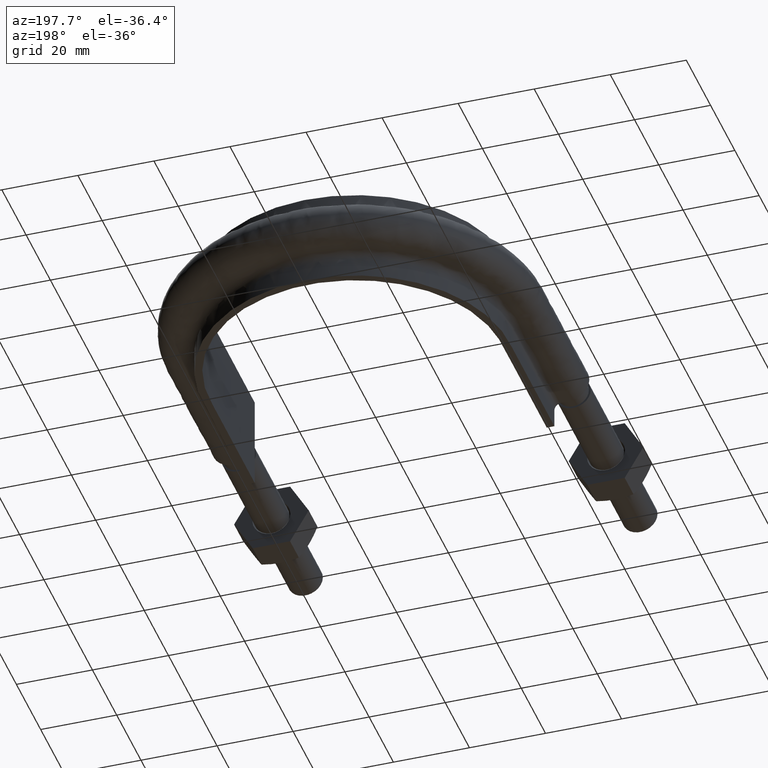
[diagram: clean part render]
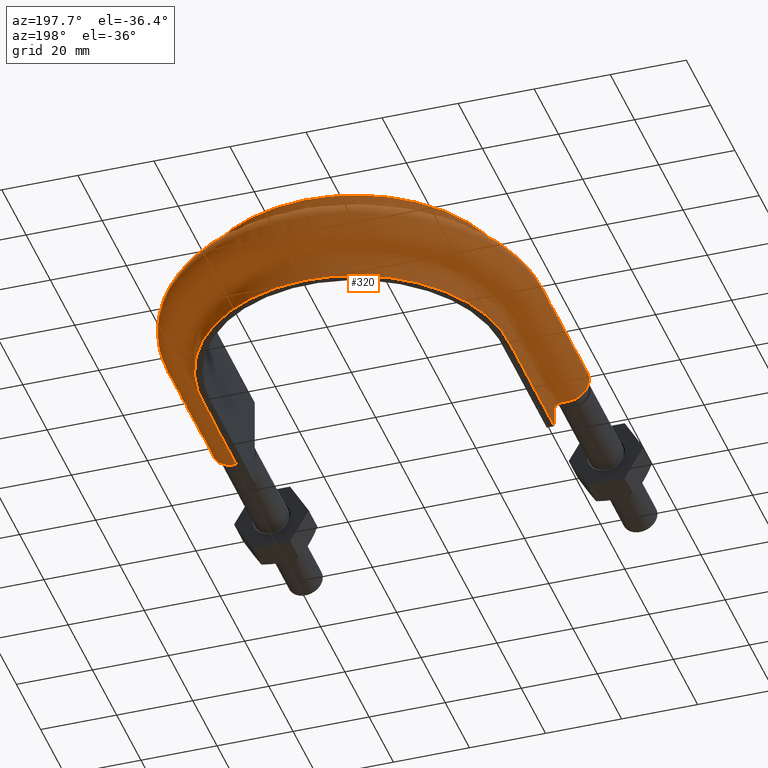
[diagram: same view with one face highlighted and labeled with its STEP entity id]
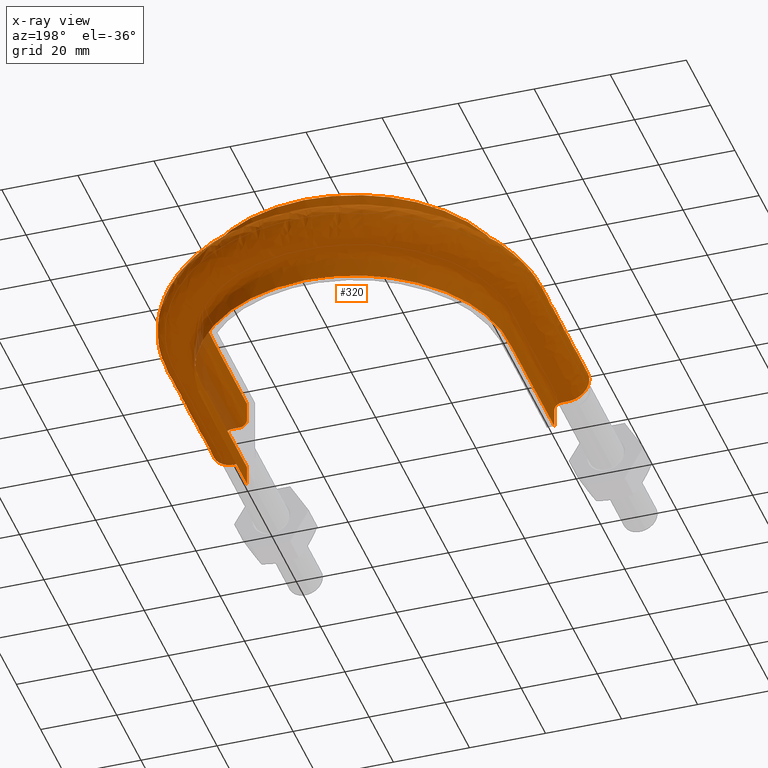
[diagram: x-ray of the same camera — body ghosted, the highlighted face saturated]
A machine part, auxiliary view. The second image highlights one B-rep face of the part: STEP entity #320.
The next image is the same camera in x-ray: the body ghosted, the highlighted face saturated — about 2% of this face is hidden behind the body in this view.
In plain terms, the highlighted face is a freeform B-spline surface patch.
Its self-contained STEP definition (entity closure, byte-faithful):
#320 = ADVANCED_FACE( '', ( #406 ), #407, .F. );
#406 = FACE_OUTER_BOUND( '', #581, .T. );
#407 = B_SPLINE_SURFACE_WITH_KNOTS( '', 3, 3, ( ( #582, #583, #584, #585, #586, #587, #588, #589, #590, #591, #592, #593, #594, #595, #596, #597, #598 ), ( #599, #600, #601, #602, #603, #604, #605, #606, #607, #608, #609, #610, #611, #612, #613, #614, #615 ), ( #616, #617, #618, #619, #620, #621, #622, #623, #624, #625, #626, #627, #628, #629, #630, #631, #632 ), ( #633, #634, #635, #636, #637, #638, #639, #640, #641, #642, #643, #644, #645, #646, #647, #648, #649 ), ( #650, #651, #652, #653, #654, #655, #656, #657, #658, #659, #660, #661, #662, #663, #664, #665, #666 ), ( #667, #668, #669, #670, #671, #672, #673, #674, #675, #676, #677, #678, #679, #680, #681, #682, #683 ), ( #684, #685, #686, #687, #688, #689, #690, #691, #692, #693, #694, #695, #696, #697, #698, #699, #700 ), ( #701, #702, #703, #704, #705, #706, #707, #708, #709, #710, #711, #712, #713, #714, #715, #716, #717 ), ( #718, #719, #720, #721, #722, #723, #724, #725, #726, #727, #728, #729, #730, #731, #732, #733, #734 ), ( #735, #736, #737, #738, #739, #740, #741, #742, #743, #744, #745, #746, #747, #748, #749, #750, #751 ), ( #752, #753, #754, #755, #756, #757, #758, #759, #760, #761, #762, #763, #764, #765, #766, #767, #768 ), ( #769, #770, #771, #772, #773, #774, #775, #776, #777, #778, #779, #780, #781, #782, #783, #784, #785 ), ( #786, #787, #788, #789, #790, #791, #792, #793, #794, #795, #796, #797, #798, #799, #800, #801, #802 ), ( #803, #804, #805, #806, #807, #808, #809, #810, #811, #812, #813, #814, #815, #816, #817, #818, #819 ), ( #820, #821, #822, #823, #824, #825, #826, #827, #828, #829, #830, #831, #832, #833, #834, #835, #836 ), ( #837, #838, #839, #840, #841, #842, #843, #844, #845, #846, #847, #848, #849, #850, #851, #852, #853 ), ( #854, #855, #856, #857, #858, #859, #860, #861, #862, #863, #864, #865, #866, #867, #868, #869, #870 ), ( #871, #872, #873, #874, #875, #876, #877, #878, #879, #880, #881, #882, #883, #884, #885, #886, #887 ), ( #888, #889, #890, #891, #892, #893, #894, #895, #896, #897, #898, #899, #900, #901, #902, #903, #904 ), ( #905, #906, #907, #908, #909, #910, #911, #912, #913, #914, #915, #916, #917, #918, #919, #920, #921 ), ( #922, #923, #924, #925, #926, #927, #928, #929, #930, #931, #932, #933, #934, #935, #936, #937, #938 ), ( #939, #940, #941, #942, #943, #944, #945, #946, #947, #948, #949, #950, #951, #952, #953, #954, #955 ), ( #956, #957, #958, #959, #960, #961, #962, #963, #964, #965, #966, #967, #968, #969, #970, #971, #972 ), ( #973, #974, #975, #976, #977, #978, #979, #980, #981, #982, #983, #984, #985, #986, #987, #988, #989 ), ( #990, #991, #992, #993, #994, #995, #996, #997, #998, #999, #1000, #1001, #1002, #1003, #1004, #1005, #1006 ), ( #1007, #1008, #1009, #1010, #1011, #1012, #1013, #1014, #1015, #1016, #1017, #1018, #1019, #1020, #1021, #1022, #1023 ), ( #1024, #1025, #1026, #1027, #1028, #1029, #1030, #1031, #1032, #1033, #1034, #1035, #1036, #1037, #1038, #1039, #1040 ), ( #1041, #1042, #1043, #1044, #1045, #1046, #1047, #1048, #1049, #1050, #1051, #1052, #1053, #1054, #1055, #1056, #1057 ), ( #1058, #1059, #1060, #1061, #1062, #1063, #1064, #1065, #1066, #1067, #1068, #1069, #1070, #1071, #1072, #1073, #1074 ), ( #1075, #1076, #1077, #1078, #1079, #1080, #1081, #1082, #1083, #1084, #1085, #1086, #1087, #1088, #1089, #1090, #1091 ), ( #1092, #1093, #1094, #1095, #1096, #1097, #1098, #1099, #1100, #1101, #1102, #1103, #1104, #1105, #1106, #1107, #1108 ) ), .UNSPECIFIED., .F., .F., .F., ( 4, 3, 1, 1, 1, 3, 3, 1, 1, 1, 3, 3, 1, 1, 1, 3, 4 ), ( 4, 3, 1, 1, 1, 1, 1, 1, 1, 3, 4 ), ( 0.105263157894737, 0.157894736842105, 0.210526315789474, 0.263157894736842, 0.315789473684211, 0.368421052631579, 0.421052631578947, 0.473684210526316, 0.526315789473684, 0.578947368421053, 0.631578947368421, 0.684210526315789, 0.736842105263158, 0.789473684210526, 0.842105263157895, 0.894736842105263, 0.947368421052632 ), ( 0.000000000000000, 1.00000000000000, 1.50000000000000, 2.00000000000000, 3.00000000000000, 4.00000000000000, 5.00000000000000, 6.00000000000000, 6.50000000000000, 7.00000000000000, 8.00000000000000 ), .UNSPECIFIED. );
#581 = EDGE_LOOP( '', ( #1619, #1620, #1621, #1622 ) );
#582 = CARTESIAN_POINT( '', ( -40.4000000000000, 56.5000000000000, 12.5000000000000 ) );
#583 = CARTESIAN_POINT( '', ( -40.4000000000000, 69.8666666666667, 12.5000000000000 ) );
#584 = CARTESIAN_POINT( '', ( -40.4000000000000, 83.2333333333333, 12.5000000000000 ) );
#585 = CARTESIAN_POINT( '', ( -40.4000000000000, 96.6000000000000, 12.5000000000000 ) );
#586 = CARTESIAN_POINT( '', ( -40.4000000000000, 100.116528833197, 12.5000000000000 ) );
#587 = CARTESIAN_POINT( '', ( -39.4544182095027, 107.175179019489, 12.5000000000000 ) );
#588 = CARTESIAN_POINT( '', ( -34.0439198137652, 120.322280291266, 12.5000000000000 ) );
#589 = CARTESIAN_POINT( '', ( -21.1440253219688, 133.223582281160, 12.5000000000000 ) );
#590 = CARTESIAN_POINT( '', ( 3.17534878498284E-014, 138.888208859420, 12.5000000000000 ) );
#591 = CARTESIAN_POINT( '', ( 21.1440253219689, 133.223582281160, 12.5000000000000 ) );
#592 = CARTESIAN_POINT( '', ( 34.0439198137653, 120.322280291266, 12.5000000000000 ) );
#593 = CARTESIAN_POINT( '', ( 39.4544182095027, 107.175179019489, 12.5000000000000 ) );
#594 = CARTESIAN_POINT( '', ( 40.4000000000000, 100.116528833197, 12.5000000000000 ) );
#595 = CARTESIAN_POINT( '', ( 40.4000000000000, 96.6000000000000, 12.5000000000000 ) );
#596 = CARTESIAN_POINT( '', ( 40.4000000000000, 83.2333333333333, 12.5000000000000 ) );
#597 = CARTESIAN_POINT( '', ( 40.4000000000000, 69.8666666666667, 12.5000000000000 ) );
#598 = CARTESIAN_POINT( '', ( 40.4000000000000, 56.5000000000000, 12.5000000000000 ) );
#599 = CARTESIAN_POINT( '', ( -40.4000000000000, 56.5000000000000, 10.8666666666667 ) );
#600 = CARTESIAN_POINT( '', ( -40.4000000000000, 69.8666666666667, 10.8666666666667 ) );
#601 = CARTESIAN_POINT( '', ( -40.4000000000000, 83.2333333333333, 10.8666666666667 ) );
#602 = CARTESIAN_POINT( '', ( -40.4000000000000, 96.6000000000000, 10.8666666666667 ) );
#603 = CARTESIAN_POINT( '', ( -40.4000000000000, 100.116528833197, 10.8666666666667 ) );
#604 = CARTESIAN_POINT( '', ( -39.4544182095027, 107.175179019489, 10.8666666666666 ) );
#605 = CARTESIAN_POINT( '', ( -34.0439198137652, 120.322280291266, 10.8666666666667 ) );
#606 = CARTESIAN_POINT( '', ( -21.1440253219688, 133.223582281160, 10.8666666666667 ) );
#607 = CARTESIAN_POINT( '', ( 3.17534878498284E-014, 138.888208859420, 10.8666666666667 ) );
#608 = CARTESIAN_POINT( '', ( 21.1440253219689, 133.223582281160, 10.8666666666667 ) );
#609 = CARTESIAN_POINT( '', ( 34.0439198137653, 120.322280291266, 10.8666666666667 ) );
#610 = CARTESIAN_POINT( '', ( 39.4544182095027, 107.175179019489, 10.8666666666666 ) );
#611 = CARTESIAN_POINT( '', ( 40.4000000000000, 100.116528833197, 10.8666666666667 ) );
#612 = CARTESIAN_POINT( '', ( 40.4000000000000, 96.6000000000000, 10.8666666666667 ) );
#613 = CARTESIAN_POINT( '', ( 40.4000000000000, 83.2333333333333, 10.8666666666667 ) );
#614 = CARTESIAN_POINT( '', ( 40.4000000000000, 69.8666666666667, 10.8666666666667 ) );
#615 = CARTESIAN_POINT( '', ( 40.4000000000000, 56.5000000000000, 10.8666666666667 ) );
#616 = CARTESIAN_POINT( '', ( -40.4000000000000, 56.5000000000000, 9.23333333333332 ) );
#617 = CARTESIAN_POINT( '', ( -40.4000000000000, 69.8666666666667, 9.23333333333332 ) );
#618 = CARTESIAN_POINT( '', ( -40.4000000000000, 83.2333333333333, 9.23333333333332 ) );
#619 = CARTESIAN_POINT( '', ( -40.4000000000000, 96.6000000000000, 9.23333333333332 ) );
#620 = CARTESIAN_POINT( '', ( -40.4000000000000, 100.116528833197, 9.23333333333332 ) );
#621 = CARTESIAN_POINT( '', ( -39.4544182095027, 107.175179019489, 9.23333333333331 ) );
#622 = CARTESIAN_POINT( '', ( -34.0439198137652, 120.322280291266, 9.23333333333333 ) );
#623 = CARTESIAN_POINT( '', ( -21.1440253219688, 133.223582281160, 9.23333333333332 ) );
#624 = CARTESIAN_POINT( '', ( 3.17534878498284E-014, 138.888208859420, 9.23333333333332 ) );
#625 = CARTESIAN_POINT( '', ( 21.1440253219689, 133.223582281160, 9.23333333333332 ) );
#626 = CARTESIAN_POINT( '', ( 34.0439198137653, 120.322280291266, 9.23333333333332 ) );
#627 = CARTESIAN_POINT( '', ( 39.4544182095027, 107.175179019489, 9.23333333333331 ) );
#628 = CARTESIAN_POINT( '', ( 40.4000000000000, 100.116528833197, 9.23333333333332 ) );
#629 = CARTESIAN_POINT( '', ( 40.4000000000000, 96.6000000000000, 9.23333333333332 ) );
#630 = CARTESIAN_POINT( '', ( 40.4000000000000, 83.2333333333333, 9.23333333333332 ) );
#631 = CARTESIAN_POINT( '', ( 40.4000000000000, 69.8666666666667, 9.23333333333332 ) );
#632 = CARTESIAN_POINT( '', ( 40.4000000000000, 56.5000000000000, 9.23333333333332 ) );
#633 = CARTESIAN_POINT( '', ( -40.4000000000000, 56.5000000000000, 7.59999999999998 ) );
#634 = CARTESIAN_POINT( '', ( -40.4000000000000, 69.8666666666667, 7.59999999999998 ) );
#635 = CARTESIAN_POINT( '', ( -40.4000000000000, 83.2333333333333, 7.59999999999998 ) );
#636 = CARTESIAN_POINT( '', ( -40.4000000000000, 96.6000000000000, 7.59999999999998 ) );
#637 = CARTESIAN_POINT( '', ( -40.4000000000000, 100.116528833197, 7.59999999999998 ) );
#638 = CARTESIAN_POINT( '', ( -39.4544182095027, 107.175179019489, 7.59999999999997 ) );
#639 = CARTESIAN_POINT( '', ( -34.0439198137652, 120.322280291266, 7.59999999999999 ) );
#640 = CARTESIAN_POINT( '', ( -21.1440253219688, 133.223582281160, 7.59999999999998 ) );
#641 = CARTESIAN_POINT( '', ( 3.34882113258052E-014, 138.888208859420, 7.59999999999998 ) );
#642 = CARTESIAN_POINT( '', ( 21.1440253219689, 133.223582281160, 7.59999999999998 ) );
#643 = CARTESIAN_POINT( '', ( 34.0439198137653, 120.322280291266, 7.59999999999999 ) );
#644 = CARTESIAN_POINT( '', ( 39.4544182095027, 107.175179019489, 7.59999999999997 ) );
#645 = CARTESIAN_POINT( '', ( 40.4000000000000, 100.116528833197, 7.59999999999998 ) );
#646 = CARTESIAN_POINT( '', ( 40.4000000000000, 96.6000000000000, 7.59999999999998 ) );
#647 = CARTESIAN_POINT( '', ( 40.4000000000000, 83.2333333333333, 7.59999999999998 ) );
#648 = CARTESIAN_POINT( '', ( 40.4000000000000, 69.8666666666667, 7.59999999999998 ) );
#649 = CARTESIAN_POINT( '', ( 40.4000000000000, 56.5000000000000, 7.59999999999998 ) );
#650 = CARTESIAN_POINT( '', ( -40.4000000000000, 56.5000000000000, 7.33823584172332 ) );
#651 = CARTESIAN_POINT( '', ( -40.4000000000000, 69.8666666666667, 7.33823584172332 ) );
#652 = CARTESIAN_POINT( '', ( -40.4000000000000, 83.2333333333333, 7.33823584172332 ) );
#653 = CARTESIAN_POINT( '', ( -40.4000000000000, 96.6000000000000, 7.33823584172332 ) );
#654 = CARTESIAN_POINT( '', ( -40.4000000000000, 100.116528833197, 7.33823584172332 ) );
#655 = CARTESIAN_POINT( '', ( -39.4544182095027, 107.175179019489, 7.33823584172331 ) );
#656 = CARTESIAN_POINT( '', ( -34.0439198137652, 120.322280291266, 7.33823584172332 ) );
#657 = CARTESIAN_POINT( '', ( -21.1440253219688, 133.223582281160, 7.33823584172331 ) );
#658 = CARTESIAN_POINT( '', ( 3.17534878498284E-014, 138.888208859420, 7.33823584172331 ) );
#659 = CARTESIAN_POINT( '', ( 21.1440253219689, 133.223582281160, 7.33823584172331 ) );
#660 = CARTESIAN_POINT( '', ( 34.0439198137653, 120.322280291266, 7.33823584172332 ) );
#661 = CARTESIAN_POINT( '', ( 39.4544182095027, 107.175179019489, 7.33823584172331 ) );
#662 = CARTESIAN_POINT( '', ( 40.4000000000000, 100.116528833197, 7.33823584172332 ) );
#663 = CARTESIAN_POINT( '', ( 40.4000000000000, 96.6000000000000, 7.33823584172332 ) );
#664 = CARTESIAN_POINT( '', ( 40.4000000000000, 83.2333333333333, 7.33823584172332 ) );
#665 = CARTESIAN_POINT( '', ( 40.4000000000000, 69.8666666666667, 7.33823584172332 ) );
#666 = CARTESIAN_POINT( '', ( 40.4000000000000, 56.5000000000000, 7.33823584172332 ) );
#667 = CARTESIAN_POINT( '', ( -40.5041362568359, 56.5000000000000, 6.81470752516999 ) );
#668 = CARTESIAN_POINT( '', ( -40.5041362568359, 69.8666666666667, 6.81470752516999 ) );
#669 = CARTESIAN_POINT( '', ( -40.5041362568359, 83.2333333333333, 6.81470752516999 ) );
#670 = CARTESIAN_POINT( '', ( -40.5041362568359, 96.6000000000000, 6.81470752516999 ) );
#671 = CARTESIAN_POINT( '', ( -40.5041362568359, 100.125829908504, 6.81470752516999 ) );
#672 = CARTESIAN_POINT( '', ( -39.5561585978603, 107.202341937292, 6.81470752516998 ) );
#673 = CARTESIAN_POINT( '', ( -34.1316485577521, 120.383483124071, 6.81470752516999 ) );
#674 = CARTESIAN_POINT( '', ( -21.1985343424224, 133.317964123169, 6.81470752516999 ) );
#675 = CARTESIAN_POINT( '', ( 3.26341994459140E-014, 138.997222323669, 6.81470752516999 ) );
#676 = CARTESIAN_POINT( '', ( 21.1985343424224, 133.317964123169, 6.81470752516999 ) );
#677 = CARTESIAN_POINT( '', ( 34.1316485577522, 120.383483124071, 6.81470752516999 ) );
#678 = CARTESIAN_POINT( '', ( 39.5561585978604, 107.202341937292, 6.81470752516998 ) );
#679 = CARTESIAN_POINT( '', ( 40.5041362568359, 100.125829908504, 6.81470752516999 ) );
#680 = CARTESIAN_POINT( '', ( 40.5041362568359, 96.6000000000000, 6.81470752516999 ) );
#681 = CARTESIAN_POINT( '', ( 40.5041362568359, 83.2333333333333, 6.81470752516999 ) );
#682 = CARTESIAN_POINT( '', ( 40.5041362568359, 69.8666666666667, 6.81470752516999 ) );
#683 = CARTESIAN_POINT( '', ( 40.5041362568359, 56.5000000000000, 6.81470752516999 ) );
#684 = CARTESIAN_POINT( '', ( -40.9489687109389, 56.5000000000000, 6.14896871093886 ) );
#685 = CARTESIAN_POINT( '', ( -40.9489687109389, 69.8666666666667, 6.14896871093886 ) );
#686 = CARTESIAN_POINT( '', ( -40.9489687109389, 83.2333333333333, 6.14896871093886 ) );
#687 = CARTESIAN_POINT( '', ( -40.9489687109389, 96.6000000000000, 6.14896871093886 ) );
#688 = CARTESIAN_POINT( '', ( -40.9489687109389, 100.165560740786, 6.14896871093886 ) );
#689 = CARTESIAN_POINT( '', ( -39.9907567676970, 107.318372105405, 6.14896871093885 ) );
#690 = CARTESIAN_POINT( '', ( -34.5063940466797, 120.644919506957, 6.14896871093886 ) );
#691 = CARTESIAN_POINT( '', ( -21.4313771781055, 133.721129242402, 6.14896871093885 ) );
#692 = CARTESIAN_POINT( '', ( 3.18238634770451E-014, 139.462888445207, 6.14896871093886 ) );
#693 = CARTESIAN_POINT( '', ( 21.4313771781055, 133.721129242402, 6.14896871093885 ) );
#694 = CARTESIAN_POINT( '', ( 34.5063940466797, 120.644919506957, 6.14896871093886 ) );
#695 = CARTESIAN_POINT( '', ( 39.9907567676970, 107.318372105405, 6.14896871093885 ) );
#696 = CARTESIAN_POINT( '', ( 40.9489687109389, 100.165560740786, 6.14896871093886 ) );
#697 = CARTESIAN_POINT( '', ( 40.9489687109389, 96.6000000000000, 6.14896871093886 ) );
#698 = CARTESIAN_POINT( '', ( 40.9489687109389, 83.2333333333333, 6.14896871093886 ) );
#699 = CARTESIAN_POINT( '', ( 40.9489687109389, 69.8666666666667, 6.14896871093886 ) );
#700 = CARTESIAN_POINT( '', ( 40.9489687109389, 56.5000000000000, 6.14896871093886 ) );
#701 = CARTESIAN_POINT( '', ( -41.6147075251700, 56.5000000000000, 5.70413625683589 ) );
#702 = CARTESIAN_POINT( '', ( -41.6147075251700, 69.8666666666667, 5.70413625683589 ) );
#703 = CARTESIAN_POINT( '', ( -41.6147075251700, 83.2333333333333, 5.70413625683589 ) );
#704 = CARTESIAN_POINT( '', ( -41.6147075251700, 96.6000000000000, 5.70413625683589 ) );
#705 = CARTESIAN_POINT( '', ( -41.6147075251700, 100.225022133333, 5.70413625683589 ) );
#706 = CARTESIAN_POINT( '', ( -40.6411788931184, 107.492023523646, 5.70413625683588 ) );
#707 = CARTESIAN_POINT( '', ( -35.0672403049415, 121.036186704155, 5.70413625683589 ) );
#708 = CARTESIAN_POINT( '', ( -21.7798511077842, 134.324508483151, 5.70413625683588 ) );
#709 = CARTESIAN_POINT( '', ( 3.10418468337414E-014, 140.159807046179, 5.70413625683589 ) );
#710 = CARTESIAN_POINT( '', ( 21.7798511077843, 134.324508483151, 5.70413625683588 ) );
#711 = CARTESIAN_POINT( '', ( 35.0672403049415, 121.036186704155, 5.70413625683589 ) );
#712 = CARTESIAN_POINT( '', ( 40.6411788931185, 107.492023523646, 5.70413625683588 ) );
#713 = CARTESIAN_POINT( '', ( 41.6147075251700, 100.225022133333, 5.70413625683589 ) );
#714 = CARTESIAN_POINT( '', ( 41.6147075251700, 96.6000000000000, 5.70413625683589 ) );
#715 = CARTESIAN_POINT( '', ( 41.6147075251700, 83.2333333333333, 5.70413625683589 ) );
#716 = CARTESIAN_POINT( '', ( 41.6147075251700, 69.8666666666667, 5.70413625683589 ) );
#717 = CARTESIAN_POINT( '', ( 41.6147075251700, 56.5000000000000, 5.70413625683589 ) );
#718 = CARTESIAN_POINT( '', ( -42.1382358417233, 56.5000000000000, 5.59999999999998 ) );
#719 = CARTESIAN_POINT( '', ( -42.1382358417233, 69.8666666666667, 5.59999999999998 ) );
#720 = CARTESIAN_POINT( '', ( -42.1382358417233, 83.2333333333333, 5.59999999999998 ) );
#721 = CARTESIAN_POINT( '', ( -42.1382358417233, 96.6000000000000, 5.59999999999998 ) );
#722 = CARTESIAN_POINT( '', ( -42.1382358417233, 100.271781796545, 5.59999999999998 ) );
#723 = CARTESIAN_POINT( '', ( -41.1526623654531, 107.628580733042, 5.59999999999997 ) );
#724 = CARTESIAN_POINT( '', ( -35.5082824841813, 121.343874122543, 5.59999999999998 ) );
#725 = CARTESIAN_POINT( '', ( -22.0538864589874, 134.798998044823, 5.59999999999998 ) );
#726 = CARTESIAN_POINT( '', ( 3.11089611025677E-014, 140.707854740173, 5.59999999999998 ) );
#727 = CARTESIAN_POINT( '', ( 22.0538864589875, 134.798998044823, 5.59999999999997 ) );
#728 = CARTESIAN_POINT( '', ( 35.5082824841814, 121.343874122543, 5.59999999999998 ) );
#729 = CARTESIAN_POINT( '', ( 41.1526623654532, 107.628580733042, 5.59999999999997 ) );
#730 = CARTESIAN_POINT( '', ( 42.1382358417234, 100.271781796545, 5.59999999999998 ) );
#731 = CARTESIAN_POINT( '', ( 42.1382358417234, 96.6000000000000, 5.59999999999998 ) );
#732 = CARTESIAN_POINT( '', ( 42.1382358417233, 83.2333333333333, 5.59999999999998 ) );
#733 = CARTESIAN_POINT( '', ( 42.1382358417233, 69.8666666666667, 5.59999999999998 ) );
#734 = CARTESIAN_POINT( '', ( 42.1382358417233, 56.5000000000000, 5.59999999999998 ) );
#735 = CARTESIAN_POINT( '', ( -42.4000000000000, 56.5000000000000, 5.59999999999998 ) );
#736 = CARTESIAN_POINT( '', ( -42.4000000000000, 69.8666666666667, 5.59999999999998 ) );
#737 = CARTESIAN_POINT( '', ( -42.4000000000000, 83.2333333333333, 5.59999999999998 ) );
#738 = CARTESIAN_POINT( '', ( -42.4000000000000, 96.6000000000000, 5.59999999999998 ) );
#739 = CARTESIAN_POINT( '', ( -42.4000000000000, 100.295161628151, 5.59999999999998 ) );
#740 = CARTESIAN_POINT( '', ( -41.4084041016205, 107.696859337741, 5.59999999999997 ) );
#741 = CARTESIAN_POINT( '', ( -35.7288035738012, 121.497717831737, 5.59999999999998 ) );
#742 = CARTESIAN_POINT( '', ( -22.1909041345891, 135.036242825660, 5.59999999999998 ) );
#743 = CARTESIAN_POINT( '', ( 3.11425182369808E-014, 140.981878587170, 5.59999999999998 ) );
#744 = CARTESIAN_POINT( '', ( 22.1909041345891, 135.036242825659, 5.59999999999997 ) );
#745 = CARTESIAN_POINT( '', ( 35.7288035738013, 121.497717831737, 5.59999999999998 ) );
#746 = CARTESIAN_POINT( '', ( 41.4084041016205, 107.696859337741, 5.59999999999997 ) );
#747 = CARTESIAN_POINT( '', ( 42.4000000000000, 100.295161628151, 5.59999999999998 ) );
#748 = CARTESIAN_POINT( '', ( 42.4000000000000, 96.6000000000000, 5.59999999999998 ) );
#749 = CARTESIAN_POINT( '', ( 42.4000000000000, 83.2333333333333, 5.59999999999998 ) );
#750 = CARTESIAN_POINT( '', ( 42.4000000000000, 69.8666666666667, 5.59999999999998 ) );
#751 = CARTESIAN_POINT( '', ( 42.4000000000000, 56.5000000000000, 5.59999999999998 ) );
#752 = CARTESIAN_POINT( '', ( -42.9333333333333, 56.5000000000000, 5.60000000000000 ) );
#753 = CARTESIAN_POINT( '', ( -42.9333333333333, 69.8666666666667, 5.60000000000000 ) );
#754 = CARTESIAN_POINT( '', ( -42.9333333333333, 83.2333333333333, 5.60000000000000 ) );
#755 = CARTESIAN_POINT( '', ( -42.9333333333333, 96.6000000000000, 5.60000000000000 ) );
#756 = CARTESIAN_POINT( '', ( -42.9333333333333, 100.342797040139, 5.60000000000000 ) );
#757 = CARTESIAN_POINT( '', ( -41.9294670061852, 107.835974089275, 5.59999999999999 ) );
#758 = CARTESIAN_POINT( '', ( -36.1781059098108, 121.811167842530, 5.60000000000001 ) );
#759 = CARTESIAN_POINT( '', ( -22.4700718179544, 135.519618970859, 5.60000000000000 ) );
#760 = CARTESIAN_POINT( '', ( 3.29456129463285E-014, 141.540190514570, 5.60000000000000 ) );
#761 = CARTESIAN_POINT( '', ( 22.4700718179545, 135.519618970859, 5.60000000000000 ) );
#762 = CARTESIAN_POINT( '', ( 36.1781059098109, 121.811167842530, 5.60000000000000 ) );
#763 = CARTESIAN_POINT( '', ( 41.9294670061853, 107.835974089275, 5.60000000000000 ) );
#764 = CARTESIAN_POINT( '', ( 42.9333333333334, 100.342797040139, 5.60000000000000 ) );
#765 = CARTESIAN_POINT( '', ( 42.9333333333334, 96.6000000000000, 5.60000000000000 ) );
#766 = CARTESIAN_POINT( '', ( 42.9333333333333, 83.2333333333333, 5.60000000000000 ) );
#767 = CARTESIAN_POINT( '', ( 42.9333333333333, 69.8666666666667, 5.60000000000000 ) );
#768 = CARTESIAN_POINT( '', ( 42.9333333333333, 56.5000000000000, 5.60000000000000 ) );
#769 = CARTESIAN_POINT( '', ( -43.4666666666666, 56.5000000000000, 5.60000000000000 ) );
#770 = CARTESIAN_POINT( '', ( -43.4666666666666, 69.8666666666667, 5.60000000000000 ) );
#771 = CARTESIAN_POINT( '', ( -43.4666666666666, 83.2333333333333, 5.60000000000000 ) );
#772 = CARTESIAN_POINT( '', ( -43.4666666666666, 96.6000000000000, 5.60000000000000 ) );
#773 = CARTESIAN_POINT( '', ( -43.4666666666666, 100.390432452126, 5.60000000000000 ) );
#774 = CARTESIAN_POINT( '', ( -42.4505299107500, 107.975088840809, 5.59999999999999 ) );
#775 = CARTESIAN_POINT( '', ( -36.6274082458204, 122.124617853322, 5.60000000000001 ) );
#776 = CARTESIAN_POINT( '', ( -22.7492395013198, 136.002995116059, 5.60000000000000 ) );
#777 = CARTESIAN_POINT( '', ( 2.95445372277458E-014, 142.098502441970, 5.60000000000000 ) );
#778 = CARTESIAN_POINT( '', ( 22.7492395013199, 136.002995116059, 5.60000000000000 ) );
#779 = CARTESIAN_POINT( '', ( 36.6274082458205, 122.124617853322, 5.60000000000000 ) );
#780 = CARTESIAN_POINT( '', ( 42.4505299107500, 107.975088840809, 5.60000000000000 ) );
#781 = CARTESIAN_POINT( '', ( 43.4666666666667, 100.390432452126, 5.60000000000000 ) );
#782 = CARTESIAN_POINT( '', ( 43.4666666666667, 96.6000000000000, 5.60000000000000 ) );
#783 = CARTESIAN_POINT( '', ( 43.4666666666667, 83.2333333333333, 5.60000000000000 ) );
#784 = CARTESIAN_POINT( '', ( 43.4666666666667, 69.8666666666667, 5.60000000000000 ) );
#785 = CARTESIAN_POINT( '', ( 43.4666666666667, 56.5000000000000, 5.60000000000000 ) );
#786 = CARTESIAN_POINT( '', ( -44.0000000000000, 56.5000000000000, 5.60000000000000 ) );
#787 = CARTESIAN_POINT( '', ( -44.0000000000000, 69.8666666666667, 5.60000000000000 ) );
#788 = CARTESIAN_POINT( '', ( -44.0000000000000, 83.2333333333333, 5.60000000000000 ) );
#789 = CARTESIAN_POINT( '', ( -44.0000000000000, 96.6000000000000, 5.60000000000000 ) );
#790 = CARTESIAN_POINT( '', ( -44.0000000000000, 100.438067864114, 5.60000000000000 ) );
#791 = CARTESIAN_POINT( '', ( -42.9715928153147, 108.114203592343, 5.59999999999999 ) );
#792 = CARTESIAN_POINT( '', ( -37.0767105818300, 122.438067864114, 5.60000000000001 ) );
#793 = CARTESIAN_POINT( '', ( -23.0284071846852, 136.486371261259, 5.60000000000000 ) );
#794 = CARTESIAN_POINT( '', ( 3.13476319370935E-014, 142.656814369370, 5.60000000000000 ) );
#795 = CARTESIAN_POINT( '', ( 23.0284071846853, 136.486371261259, 5.60000000000000 ) );
#796 = CARTESIAN_POINT( '', ( 37.0767105818301, 122.438067864114, 5.60000000000000 ) );
#797 = CARTESIAN_POINT( '', ( 42.9715928153148, 108.114203592343, 5.60000000000000 ) );
#798 = CARTESIAN_POINT( '', ( 44.0000000000000, 100.438067864114, 5.60000000000000 ) );
#799 = CARTESIAN_POINT( '', ( 44.0000000000000, 96.6000000000000, 5.60000000000000 ) );
#800 = CARTESIAN_POINT( '', ( 44.0000000000000, 83.2333333333333, 5.60000000000000 ) );
#801 = CARTESIAN_POINT( '', ( 44.0000000000000, 69.8666666666667, 5.60000000000000 ) );
#802 = CARTESIAN_POINT( '', ( 44.0000000000000, 56.5000000000000, 5.60000000000000 ) );
#803 = CARTESIAN_POINT( '', ( -45.4627416997969, 56.5000000000000, 5.60000000000000 ) );
#804 = CARTESIAN_POINT( '', ( -45.4627416997969, 69.8666666666667, 5.60000000000000 ) );
#805 = CARTESIAN_POINT( '', ( -45.4627416997969, 83.2333333333333, 5.60000000000000 ) );
#806 = CARTESIAN_POINT( '', ( -45.4627416997969, 96.6000000000000, 5.60000000000000 ) );
#807 = CARTESIAN_POINT( '', ( -45.4627416997969, 100.568714683179, 5.60000000000000 ) );
#808 = CARTESIAN_POINT( '', ( -44.4006811379226, 108.495745370078, 5.60000000000000 ) );
#809 = CARTESIAN_POINT( '', ( -38.3089854493877, 123.297748617091, 5.60000000000001 ) );
#810 = CARTESIAN_POINT( '', ( -23.7940638316120, 137.812098344267, 5.60000000000000 ) );
#811 = CARTESIAN_POINT( '', ( 2.98004261875882E-014, 144.188063377562, 5.60000000000000 ) );
#812 = CARTESIAN_POINT( '', ( 23.7940638316120, 137.812098344267, 5.60000000000000 ) );
#813 = CARTESIAN_POINT( '', ( 38.3089854493877, 123.297748617091, 5.60000000000001 ) );
#814 = CARTESIAN_POINT( '', ( 44.4006811379226, 108.495745370078, 5.60000000000000 ) );
#815 = CARTESIAN_POINT( '', ( 45.4627416997970, 100.568714683179, 5.60000000000000 ) );
#816 = CARTESIAN_POINT( '', ( 45.4627416997970, 96.6000000000000, 5.60000000000000 ) );
#817 = CARTESIAN_POINT( '', ( 45.4627416997970, 83.2333333333333, 5.60000000000000 ) );
#818 = CARTESIAN_POINT( '', ( 45.4627416997970, 69.8666666666667, 5.60000000000000 ) );
#819 = CARTESIAN_POINT( '', ( 45.4627416997970, 56.5000000000000, 5.60000000000000 ) );
#820 = CARTESIAN_POINT( '', ( -48.3882250993908, 56.5000000000000, 4.38822509939086 ) );
#821 = CARTESIAN_POINT( '', ( -48.3882250993908, 69.8666666666667, 4.38822509939086 ) );
#822 = CARTESIAN_POINT( '', ( -48.3882250993908, 83.2333333333333, 4.38822509939086 ) );
#823 = CARTESIAN_POINT( '', ( -48.3882250993908, 96.6000000000000, 4.38822509939086 ) );
#824 = CARTESIAN_POINT( '', ( -48.3882250993908, 100.830008321310, 4.38822509939086 ) );
#825 = CARTESIAN_POINT( '', ( -47.2588577831383, 109.258828925549, 4.38822509939085 ) );
#826 = CARTESIAN_POINT( '', ( -40.7735351845030, 125.017110123045, 4.38822509939086 ) );
#827 = CARTESIAN_POINT( '', ( -25.3253771254655, 140.463552510283, 4.38822509939086 ) );
#828 = CARTESIAN_POINT( '', ( 2.93080999025429E-014, 147.250561393945, 4.38822509939086 ) );
#829 = CARTESIAN_POINT( '', ( 25.3253771254655, 140.463552510283, 4.38822509939086 ) );
#830 = CARTESIAN_POINT( '', ( 40.7735351845030, 125.017110123045, 4.38822509939086 ) );
#831 = CARTESIAN_POINT( '', ( 47.2588577831383, 109.258828925549, 4.38822509939086 ) );
#832 = CARTESIAN_POINT( '', ( 48.3882250993909, 100.830008321310, 4.38822509939086 ) );
#833 = CARTESIAN_POINT( '', ( 48.3882250993909, 96.6000000000000, 4.38822509939086 ) );
#834 = CARTESIAN_POINT( '', ( 48.3882250993909, 83.2333333333333, 4.38822509939086 ) );
#835 = CARTESIAN_POINT( '', ( 48.3882250993909, 69.8666666666667, 4.38822509939086 ) );
#836 = CARTESIAN_POINT( '', ( 48.3882250993909, 56.5000000000000, 4.38822509939086 ) );
#837 = CARTESIAN_POINT( '', ( -50.2058874503046, 56.5000000000000, 2.90303803946411E-015 ) );
#838 = CARTESIAN_POINT( '', ( -50.2058874503046, 69.8666666666667, 2.90303803946411E-015 ) );
#839 = CARTESIAN_POINT( '', ( -50.2058874503046, 83.2333333333333, 2.90303803946411E-015 ) );
#840 = CARTESIAN_POINT( '', ( -50.2058874503046, 96.6000000000000, 2.90303803946411E-015 ) );
#841 = CARTESIAN_POINT( '', ( -50.2058874503046, 100.992355374323, 2.90303803946411E-015 ) );
#842 = CARTESIAN_POINT( '', ( -49.0347010782978, 109.732948262399, 2.90303803946411E-015 ) );
#843 = CARTESIAN_POINT( '', ( -42.3048100726446, 126.085384404627, 2.90303803946412E-015 ) );
#844 = CARTESIAN_POINT( '', ( -26.2768132273000, 142.110954923645, 2.90303803946411E-015 ) );
#845 = CARTESIAN_POINT( '', ( 3.47452874869430E-014, 149.153353713635, 2.90303803946411E-015 ) );
#846 = CARTESIAN_POINT( '', ( 26.2768132273000, 142.110954923645, 2.90303803946411E-015 ) );
#847 = CARTESIAN_POINT( '', ( 42.3048100726447, 126.085384404627, 2.90303803946411E-015 ) );
#848 = CARTESIAN_POINT( '', ( 49.0347010782979, 109.732948262399, 2.90303803946411E-015 ) );
#849 = CARTESIAN_POINT( '', ( 50.2058874503046, 100.992355374323, 2.90303803946411E-015 ) );
#850 = CARTESIAN_POINT( '', ( 50.2058874503046, 96.6000000000000, 2.90303803946411E-015 ) );
#851 = CARTESIAN_POINT( '', ( 50.2058874503046, 83.2333333333333, 2.90303803946411E-015 ) );
#852 = CARTESIAN_POINT( '', ( 50.2058874503046, 69.8666666666667, 2.90303803946411E-015 ) );
#853 = CARTESIAN_POINT( '', ( 50.2058874503046, 56.5000000000000, 2.90303803946411E-015 ) );
#854 = CARTESIAN_POINT( '', ( -48.3882250993908, 56.5000000000000, -4.38822509939085 ) );
#855 = CARTESIAN_POINT( '', ( -48.3882250993908, 69.8666666666667, -4.38822509939085 ) );
#856 = CARTESIAN_POINT( '', ( -48.3882250993908, 83.2333333333333, -4.38822509939085 ) );
#857 = CARTESIAN_POINT( '', ( -48.3882250993908, 96.6000000000000, -4.38822509939085 ) );
#858 = CARTESIAN_POINT( '', ( -48.3882250993908, 100.830008321310, -4.38822509939085 ) );
#859 = CARTESIAN_POINT( '', ( -47.2588577831383, 109.258828925549, -4.38822509939085 ) );
#860 = CARTESIAN_POINT( '', ( -40.7735351845030, 125.017110123045, -4.38822509939086 ) );
#861 = CARTESIAN_POINT( '', ( -25.3253771254655, 140.463552510283, -4.38822509939085 ) );
#862 = CARTESIAN_POINT( '', ( 2.93080999025429E-014, 147.250561393945, -4.38822509939085 ) );
#863 = CARTESIAN_POINT( '', ( 25.3253771254655, 140.463552510283, -4.38822509939085 ) );
#864 = CARTESIAN_POINT( '', ( 40.7735351845031, 125.017110123045, -4.38822509939086 ) );
#865 = CARTESIAN_POINT( '', ( 47.2588577831383, 109.258828925549, -4.38822509939085 ) );
#866 = CARTESIAN_POINT( '', ( 48.3882250993909, 100.830008321310, -4.38822509939085 ) );
#867 = CARTESIAN_POINT( '', ( 48.3882250993909, 96.6000000000000, -4.38822509939085 ) );
#868 = CARTESIAN_POINT( '', ( 48.3882250993909, 83.2333333333333, -4.38822509939085 ) );
#869 = CARTESIAN_POINT( '', ( 48.3882250993909, 69.8666666666667, -4.38822509939085 ) );
#870 = CARTESIAN_POINT( '', ( 48.3882250993909, 56.5000000000000, -4.38822509939085 ) );
#871 = CARTESIAN_POINT( '', ( -45.4627416997969, 56.5000000000000, -5.60000000000000 ) );
#872 = CARTESIAN_POINT( '', ( -45.4627416997969, 69.8666666666667, -5.60000000000000 ) );
#873 = CARTESIAN_POINT( '', ( -45.4627416997969, 83.2333333333333, -5.60000000000000 ) );
#874 = CARTESIAN_POINT( '', ( -45.4627416997969, 96.6000000000000, -5.60000000000000 ) );
#875 = CARTESIAN_POINT( '', ( -45.4627416997969, 100.568714683179, -5.60000000000000 ) );
#876 = CARTESIAN_POINT( '', ( -44.4006811379226, 108.495745370078, -5.59999999999999 ) );
#877 = CARTESIAN_POINT( '', ( -38.3089854493877, 123.297748617091, -5.60000000000000 ) );
#878 = CARTESIAN_POINT( '', ( -23.7940638316120, 137.812098344267, -5.60000000000000 ) );
#879 = CARTESIAN_POINT( '', ( 2.98004261875882E-014, 144.188063377562, -5.60000000000000 ) );
#880 = CARTESIAN_POINT( '', ( 23.7940638316120, 137.812098344267, -5.60000000000000 ) );
#881 = CARTESIAN_POINT( '', ( 38.3089854493877, 123.297748617091, -5.60000000000000 ) );
#882 = CARTESIAN_POINT( '', ( 44.4006811379226, 108.495745370078, -5.59999999999999 ) );
#883 = CARTESIAN_POINT( '', ( 45.4627416997970, 100.568714683179, -5.60000000000000 ) );
#884 = CARTESIAN_POINT( '', ( 45.4627416997970, 96.6000000000000, -5.60000000000000 ) );
#885 = CARTESIAN_POINT( '', ( 45.4627416997970, 83.2333333333333, -5.60000000000000 ) );
#886 = CARTESIAN_POINT( '', ( 45.4627416997970, 69.8666666666667, -5.60000000000000 ) );
#887 = CARTESIAN_POINT( '', ( 45.4627416997970, 56.5000000000000, -5.60000000000000 ) );
#888 = CARTESIAN_POINT( '', ( -44.0000000000000, 56.5000000000000, -5.60000000000000 ) );
#889 = CARTESIAN_POINT( '', ( -44.0000000000000, 69.8666666666667, -5.60000000000000 ) );
#890 = CARTESIAN_POINT( '', ( -44.0000000000000, 83.2333333333333, -5.60000000000000 ) );
#891 = CARTESIAN_POINT( '', ( -44.0000000000000, 96.6000000000000, -5.60000000000000 ) );
#892 = CARTESIAN_POINT( '', ( -44.0000000000000, 100.438067864114, -5.60000000000000 ) );
#893 = CARTESIAN_POINT( '', ( -42.9715928153147, 108.114203592343, -5.59999999999999 ) );
#894 = CARTESIAN_POINT( '', ( -37.0767105818300, 122.438067864114, -5.60000000000000 ) );
#895 = CARTESIAN_POINT( '', ( -23.0284071846852, 136.486371261259, -5.60000000000000 ) );
#896 = CARTESIAN_POINT( '', ( 2.96129084611167E-014, 142.656814369370, -5.60000000000000 ) );
#897 = CARTESIAN_POINT( '', ( 23.0284071846853, 136.486371261259, -5.60000000000000 ) );
#898 = CARTESIAN_POINT( '', ( 37.0767105818301, 122.438067864114, -5.60000000000000 ) );
#899 = CARTESIAN_POINT( '', ( 42.9715928153148, 108.114203592343, -5.59999999999999 ) );
#900 = CARTESIAN_POINT( '', ( 44.0000000000000, 100.438067864114, -5.60000000000000 ) );
#901 = CARTESIAN_POINT( '', ( 44.0000000000000, 96.6000000000000, -5.60000000000000 ) );
#902 = CARTESIAN_POINT( '', ( 44.0000000000000, 83.2333333333333, -5.60000000000000 ) );
#903 = CARTESIAN_POINT( '', ( 44.0000000000000, 69.8666666666667, -5.60000000000000 ) );
#904 = CARTESIAN_POINT( '', ( 44.0000000000000, 56.5000000000000, -5.60000000000000 ) );
#905 = CARTESIAN_POINT( '', ( -43.4666666666666, 56.5000000000000, -5.60000000000000 ) );
#906 = CARTESIAN_POINT( '', ( -43.4666666666666, 69.8666666666667, -5.60000000000000 ) );
#907 = CARTESIAN_POINT( '', ( -43.4666666666666, 83.2333333333333, -5.60000000000000 ) );
#908 = CARTESIAN_POINT( '', ( -43.4666666666666, 96.6000000000000, -5.60000000000000 ) );
#909 = CARTESIAN_POINT( '', ( -43.4666666666666, 100.390432452126, -5.60000000000000 ) );
#910 = CARTESIAN_POINT( '', ( -42.4505299107500, 107.975088840809, -5.59999999999999 ) );
#911 = CARTESIAN_POINT( '', ( -36.6274082458204, 122.124617853322, -5.60000000000000 ) );
#912 = CARTESIAN_POINT( '', ( -22.7492395013198, 136.002995116059, -5.60000000000000 ) );
#913 = CARTESIAN_POINT( '', ( 2.95445372277458E-014, 142.098502441970, -5.60000000000000 ) );
#914 = CARTESIAN_POINT( '', ( 22.7492395013199, 136.002995116059, -5.60000000000000 ) );
#915 = CARTESIAN_POINT( '', ( 36.6274082458205, 122.124617853322, -5.60000000000000 ) );
#916 = CARTESIAN_POINT( '', ( 42.4505299107500, 107.975088840809, -5.59999999999999 ) );
#917 = CARTESIAN_POINT( '', ( 43.4666666666667, 100.390432452126, -5.60000000000000 ) );
#918 = CARTESIAN_POINT( '', ( 43.4666666666667, 96.6000000000000, -5.60000000000000 ) );
#919 = CARTESIAN_POINT( '', ( 43.4666666666667, 83.2333333333333, -5.60000000000000 ) );
#920 = CARTESIAN_POINT( '', ( 43.4666666666667, 69.8666666666667, -5.60000000000000 ) );
#921 = CARTESIAN_POINT( '', ( 43.4666666666667, 56.5000000000000, -5.60000000000000 ) );
#922 = CARTESIAN_POINT( '', ( -42.9333333333333, 56.5000000000000, -5.60000000000000 ) );
#923 = CARTESIAN_POINT( '', ( -42.9333333333333, 69.8666666666667, -5.60000000000000 ) );
#924 = CARTESIAN_POINT( '', ( -42.9333333333333, 83.2333333333333, -5.60000000000000 ) );
#925 = CARTESIAN_POINT( '', ( -42.9333333333333, 96.6000000000000, -5.60000000000000 ) );
#926 = CARTESIAN_POINT( '', ( -42.9333333333333, 100.342797040139, -5.60000000000000 ) );
#927 = CARTESIAN_POINT( '', ( -41.9294670061852, 107.835974089275, -5.59999999999999 ) );
#928 = CARTESIAN_POINT( '', ( -36.1781059098108, 121.811167842530, -5.60000000000000 ) );
#929 = CARTESIAN_POINT( '', ( -22.4700718179544, 135.519618970859, -5.60000000000000 ) );
#930 = CARTESIAN_POINT( '', ( 3.29456129463285E-014, 141.540190514570, -5.60000000000000 ) );
#931 = CARTESIAN_POINT( '', ( 22.4700718179545, 135.519618970859, -5.60000000000000 ) );
#932 = CARTESIAN_POINT( '', ( 36.1781059098109, 121.811167842530, -5.60000000000000 ) );
#933 = CARTESIAN_POINT( '', ( 41.9294670061853, 107.835974089275, -5.59999999999999 ) );
#934 = CARTESIAN_POINT( '', ( 42.9333333333334, 100.342797040139, -5.60000000000000 ) );
#935 = CARTESIAN_POINT( '', ( 42.9333333333334, 96.6000000000000, -5.60000000000000 ) );
#936 = CARTESIAN_POINT( '', ( 42.9333333333333, 83.2333333333333, -5.60000000000000 ) );
#937 = CARTESIAN_POINT( '', ( 42.9333333333333, 69.8666666666667, -5.60000000000000 ) );
#938 = CARTESIAN_POINT( '', ( 42.9333333333333, 56.5000000000000, -5.60000000000000 ) );
#939 = CARTESIAN_POINT( '', ( -42.4000000000000, 56.5000000000000, -5.60000000000000 ) );
#940 = CARTESIAN_POINT( '', ( -42.4000000000000, 69.8666666666667, -5.60000000000000 ) );
#941 = CARTESIAN_POINT( '', ( -42.4000000000000, 83.2333333333333, -5.60000000000000 ) );
#942 = CARTESIAN_POINT( '', ( -42.4000000000000, 96.6000000000000, -5.60000000000000 ) );
#943 = CARTESIAN_POINT( '', ( -42.4000000000000, 100.295161628151, -5.60000000000000 ) );
#944 = CARTESIAN_POINT( '', ( -41.4084041016205, 107.696859337741, -5.59999999999999 ) );
#945 = CARTESIAN_POINT( '', ( -35.7288035738012, 121.497717831737, -5.60000000000000 ) );
#946 = CARTESIAN_POINT( '', ( -22.1909041345890, 135.036242825660, -5.60000000000000 ) );
#947 = CARTESIAN_POINT( '', ( 3.11425182369808E-014, 140.981878587170, -5.60000000000000 ) );
#948 = CARTESIAN_POINT( '', ( 22.1909041345891, 135.036242825659, -5.60000000000000 ) );
#949 = CARTESIAN_POINT( '', ( 35.7288035738013, 121.497717831737, -5.60000000000000 ) );
#950 = CARTESIAN_POINT( '', ( 41.4084041016205, 107.696859337741, -5.59999999999999 ) );
#951 = CARTESIAN_POINT( '', ( 42.4000000000000, 100.295161628151, -5.60000000000000 ) );
#952 = CARTESIAN_POINT( '', ( 42.4000000000000, 96.6000000000000, -5.60000000000000 ) );
#953 = CARTESIAN_POINT( '', ( 42.4000000000000, 83.2333333333333, -5.60000000000000 ) );
#954 = CARTESIAN_POINT( '', ( 42.4000000000000, 69.8666666666667, -5.60000000000000 ) );
#955 = CARTESIAN_POINT( '', ( 42.4000000000000, 56.5000000000000, -5.60000000000000 ) );
#956 = CARTESIAN_POINT( '', ( -42.1382358417233, 56.5000000000000, -5.60000000000000 ) );
#957 = CARTESIAN_POINT( '', ( -42.1382358417233, 69.8666666666667, -5.60000000000000 ) );
#958 = CARTESIAN_POINT( '', ( -42.1382358417233, 83.2333333333333, -5.60000000000000 ) );
#959 = CARTESIAN_POINT( '', ( -42.1382358417233, 96.6000000000000, -5.60000000000000 ) );
#960 = CARTESIAN_POINT( '', ( -42.1382358417233, 100.271781796545, -5.60000000000000 ) );
#961 = CARTESIAN_POINT( '', ( -41.1526623654531, 107.628580733042, -5.59999999999999 ) );
#962 = CARTESIAN_POINT( '', ( -35.5082824841813, 121.343874122543, -5.60000000000000 ) );
#963 = CARTESIAN_POINT( '', ( -22.0538864589874, 134.798998044823, -5.60000000000000 ) );
#964 = CARTESIAN_POINT( '', ( 3.11089611025677E-014, 140.707854740173, -5.60000000000000 ) );
#965 = CARTESIAN_POINT( '', ( 22.0538864589875, 134.798998044823, -5.60000000000000 ) );
#966 = CARTESIAN_POINT( '', ( 35.5082824841814, 121.343874122543, -5.60000000000000 ) );
#967 = CARTESIAN_POINT( '', ( 41.1526623654532, 107.628580733042, -5.59999999999999 ) );
#968 = CARTESIAN_POINT( '', ( 42.1382358417234, 100.271781796545, -5.60000000000000 ) );
#969 = CARTESIAN_POINT( '', ( 42.1382358417234, 96.6000000000000, -5.60000000000000 ) );
#970 = CARTESIAN_POINT( '', ( 42.1382358417233, 83.2333333333333, -5.60000000000000 ) );
#971 = CARTESIAN_POINT( '', ( 42.1382358417233, 69.8666666666667, -5.60000000000000 ) );
#972 = CARTESIAN_POINT( '', ( 42.1382358417233, 56.5000000000000, -5.60000000000000 ) );
#973 = CARTESIAN_POINT( '', ( -41.6147075251700, 56.5000000000000, -5.70413625683591 ) );
#974 = CARTESIAN_POINT( '', ( -41.6147075251700, 69.8666666666667, -5.70413625683591 ) );
#975 = CARTESIAN_POINT( '', ( -41.6147075251700, 83.2333333333333, -5.70413625683591 ) );
#976 = CARTESIAN_POINT( '', ( -41.6147075251700, 96.6000000000000, -5.70413625683591 ) );
#977 = CARTESIAN_POINT( '', ( -41.6147075251700, 100.225022133333, -5.70413625683591 ) );
#978 = CARTESIAN_POINT( '', ( -40.6411788931185, 107.492023523646, -5.70413625683590 ) );
#979 = CARTESIAN_POINT( '', ( -35.0672403049415, 121.036186704155, -5.70413625683591 ) );
#980 = CARTESIAN_POINT( '', ( -21.7798511077842, 134.324508483151, -5.70413625683591 ) );
#981 = CARTESIAN_POINT( '', ( 2.93071233577646E-014, 140.159807046179, -5.70413625683591 ) );
#982 = CARTESIAN_POINT( '', ( 21.7798511077843, 134.324508483151, -5.70413625683590 ) );
#983 = CARTESIAN_POINT( '', ( 35.0672403049415, 121.036186704155, -5.70413625683591 ) );
#984 = CARTESIAN_POINT( '', ( 40.6411788931185, 107.492023523646, -5.70413625683590 ) );
#985 = CARTESIAN_POINT( '', ( 41.6147075251700, 100.225022133333, -5.70413625683591 ) );
#986 = CARTESIAN_POINT( '', ( 41.6147075251700, 96.6000000000000, -5.70413625683591 ) );
#987 = CARTESIAN_POINT( '', ( 41.6147075251700, 83.2333333333333, -5.70413625683591 ) );
#988 = CARTESIAN_POINT( '', ( 41.6147075251700, 69.8666666666667, -5.70413625683591 ) );
#989 = CARTESIAN_POINT( '', ( 41.6147075251700, 56.5000000000000, -5.70413625683591 ) );
#990 = CARTESIAN_POINT( '', ( -40.9489687109389, 56.5000000000000, -6.14896871093887 ) );
#991 = CARTESIAN_POINT( '', ( -40.9489687109389, 69.8666666666667, -6.14896871093887 ) );
#992 = CARTESIAN_POINT( '', ( -40.9489687109389, 83.2333333333333, -6.14896871093887 ) );
#993 = CARTESIAN_POINT( '', ( -40.9489687109389, 96.6000000000000, -6.14896871093887 ) );
#994 = CARTESIAN_POINT( '', ( -40.9489687109389, 100.165560740786, -6.14896871093887 ) );
#995 = CARTESIAN_POINT( '', ( -39.9907567676970, 107.318372105405, -6.14896871093887 ) );
#996 = CARTESIAN_POINT( '', ( -34.5063940466797, 120.644919506957, -6.14896871093888 ) );
#997 = CARTESIAN_POINT( '', ( -21.4313771781055, 133.721129242402, -6.14896871093887 ) );
#998 = CARTESIAN_POINT( '', ( 3.18238634770451E-014, 139.462888445207, -6.14896871093887 ) );
#999 = CARTESIAN_POINT( '', ( 21.4313771781055, 133.721129242402, -6.14896871093887 ) );
#1000 = CARTESIAN_POINT( '', ( 34.5063940466797, 120.644919506957, -6.14896871093888 ) );
#1001 = CARTESIAN_POINT( '', ( 39.9907567676970, 107.318372105405, -6.14896871093887 ) );
#1002 = CARTESIAN_POINT( '', ( 40.9489687109389, 100.165560740786, -6.14896871093887 ) );
#1003 = CARTESIAN_POINT( '', ( 40.9489687109389, 96.6000000000000, -6.14896871093887 ) );
#1004 = CARTESIAN_POINT( '', ( 40.9489687109389, 83.2333333333333, -6.14896871093887 ) );
#1005 = CARTESIAN_POINT( '', ( 40.9489687109389, 69.8666666666667, -6.14896871093887 ) );
#1006 = CARTESIAN_POINT( '', ( 40.9489687109389, 56.5000000000000, -6.14896871093887 ) );
#1007 = CARTESIAN_POINT( '', ( -40.5041362568359, 56.5000000000000, -6.81470752517001 ) );
#1008 = CARTESIAN_POINT( '', ( -40.5041362568359, 69.8666666666667, -6.81470752517001 ) );
#1009 = CARTESIAN_POINT( '', ( -40.5041362568359, 83.2333333333333, -6.81470752517001 ) );
#1010 = CARTESIAN_POINT( '', ( -40.5041362568359, 96.6000000000000, -6.81470752517001 ) );
#1011 = CARTESIAN_POINT( '', ( -40.5041362568359, 100.125829908504, -6.81470752517001 ) );
#1012 = CARTESIAN_POINT( '', ( -39.5561585978603, 107.202341937292, -6.81470752517000 ) );
#1013 = CARTESIAN_POINT( '', ( -34.1316485577521, 120.383483124071, -6.81470752517001 ) );
#1014 = CARTESIAN_POINT( '', ( -21.1985343424224, 133.317964123169, -6.81470752517000 ) );
#1015 = CARTESIAN_POINT( '', ( 2.91647524939603E-014, 138.997222323669, -6.81470752517001 ) );
#1016 = CARTESIAN_POINT( '', ( 21.1985343424224, 133.317964123169, -6.81470752517000 ) );
#1017 = CARTESIAN_POINT( '', ( 34.1316485577522, 120.383483124071, -6.81470752517001 ) );
#1018 = CARTESIAN_POINT( '', ( 39.5561585978604, 107.202341937292, -6.81470752517000 ) );
#1019 = CARTESIAN_POINT( '', ( 40.5041362568359, 100.125829908504, -6.81470752517001 ) );
#1020 = CARTESIAN_POINT( '', ( 40.5041362568359, 96.6000000000000, -6.81470752517001 ) );
#1021 = CARTESIAN_POINT( '', ( 40.5041362568359, 83.2333333333333, -6.81470752517001 ) );
#1022 = CARTESIAN_POINT( '', ( 40.5041362568359, 69.8666666666667, -6.81470752517001 ) );
#1023 = CARTESIAN_POINT( '', ( 40.5041362568359, 56.5000000000000, -6.81470752517001 ) );
#1024 = CARTESIAN_POINT( '', ( -40.4000000000000, 56.5000000000000, -7.33823584172333 ) );
#1025 = CARTESIAN_POINT( '', ( -40.4000000000000, 69.8666666666667, -7.33823584172333 ) );
#1026 = CARTESIAN_POINT( '', ( -40.4000000000000, 83.2333333333333, -7.33823584172333 ) );
#1027 = CARTESIAN_POINT( '', ( -40.4000000000000, 96.6000000000000, -7.33823584172333 ) );
#1028 = CARTESIAN_POINT( '', ( -40.4000000000000, 100.116528833197, -7.33823584172333 ) );
#1029 = CARTESIAN_POINT( '', ( -39.4544182095027, 107.175179019489, -7.33823584172332 ) );
#1030 = CARTESIAN_POINT( '', ( -34.0439198137653, 120.322280291266, -7.33823584172334 ) );
#1031 = CARTESIAN_POINT( '', ( -21.1440253219688, 133.223582281160, -7.33823584172333 ) );
#1032 = CARTESIAN_POINT( '', ( 3.26208495878168E-014, 138.888208859420, -7.33823584172333 ) );
#1033 = CARTESIAN_POINT( '', ( 21.1440253219689, 133.223582281160, -7.33823584172333 ) );
#1034 = CARTESIAN_POINT( '', ( 34.0439198137653, 120.322280291266, -7.33823584172334 ) );
#1035 = CARTESIAN_POINT( '', ( 39.4544182095027, 107.175179019489, -7.33823584172332 ) );
#1036 = CARTESIAN_POINT( '', ( 40.4000000000000, 100.116528833197, -7.33823584172333 ) );
#1037 = CARTESIAN_POINT( '', ( 40.4000000000000, 96.6000000000000, -7.33823584172333 ) );
#1038 = CARTESIAN_POINT( '', ( 40.4000000000000, 83.2333333333333, -7.33823584172333 ) );
#1039 = CARTESIAN_POINT( '', ( 40.4000000000000, 69.8666666666667, -7.33823584172333 ) );
#1040 = CARTESIAN_POINT( '', ( 40.4000000000000, 56.5000000000000, -7.33823584172333 ) );
#1041 = CARTESIAN_POINT( '', ( -40.4000000000000, 56.5000000000000, -7.60000000000000 ) );
#1042 = CARTESIAN_POINT( '', ( -40.4000000000000, 69.8666666666667, -7.60000000000000 ) );
#1043 = CARTESIAN_POINT( '', ( -40.4000000000000, 83.2333333333333, -7.60000000000000 ) );
#1044 = CARTESIAN_POINT( '', ( -40.4000000000000, 96.6000000000000, -7.60000000000000 ) );
#1045 = CARTESIAN_POINT( '', ( -40.4000000000000, 100.116528833197, -7.60000000000000 ) );
#1046 = CARTESIAN_POINT( '', ( -39.4544182095027, 107.175179019489, -7.59999999999999 ) );
#1047 = CARTESIAN_POINT( '', ( -34.0439198137653, 120.322280291266, -7.60000000000000 ) );
#1048 = CARTESIAN_POINT( '', ( -21.1440253219688, 133.223582281160, -7.59999999999999 ) );
#1049 = CARTESIAN_POINT( '', ( 3.26208495878168E-014, 138.888208859420, -7.60000000000000 ) );
#1050 = CARTESIAN_POINT( '', ( 21.1440253219689, 133.223582281160, -7.59999999999999 ) );
#1051 = CARTESIAN_POINT( '', ( 34.0439198137653, 120.322280291266, -7.60000000000000 ) );
#1052 = CARTESIAN_POINT( '', ( 39.4544182095027, 107.175179019489, -7.59999999999999 ) );
#1053 = CARTESIAN_POINT( '', ( 40.4000000000000, 100.116528833197, -7.60000000000000 ) );
#1054 = CARTESIAN_POINT( '', ( 40.4000000000000, 96.6000000000000, -7.60000000000000 ) );
#1055 = CARTESIAN_POINT( '', ( 40.4000000000000, 83.2333333333333, -7.60000000000000 ) );
#1056 = CARTESIAN_POINT( '', ( 40.4000000000000, 69.8666666666667, -7.60000000000000 ) );
#1057 = CARTESIAN_POINT( '', ( 40.4000000000000, 56.5000000000000, -7.60000000000000 ) );
#1058 = CARTESIAN_POINT( '', ( -40.4000000000000, 56.5000000000000, -9.23333333333333 ) );
#1059 = CARTESIAN_POINT( '', ( -40.4000000000000, 69.8666666666667, -9.23333333333333 ) );
#1060 = CARTESIAN_POINT( '', ( -40.4000000000000, 83.2333333333333, -9.23333333333333 ) );
#1061 = CARTESIAN_POINT( '', ( -40.4000000000000, 96.6000000000000, -9.23333333333333 ) );
#1062 = CARTESIAN_POINT( '', ( -40.4000000000000, 100.116528833197, -9.23333333333333 ) );
#1063 = CARTESIAN_POINT( '', ( -39.4544182095027, 107.175179019489, -9.23333333333332 ) );
#1064 = CARTESIAN_POINT( '', ( -34.0439198137652, 120.322280291266, -9.23333333333334 ) );
#1065 = CARTESIAN_POINT( '', ( -21.1440253219688, 133.223582281160, -9.23333333333333 ) );
#1066 = CARTESIAN_POINT( '', ( 3.34882113258052E-014, 138.888208859420, -9.23333333333333 ) );
#1067 = CARTESIAN_POINT( '', ( 21.1440253219689, 133.223582281160, -9.23333333333333 ) );
#1068 = CARTESIAN_POINT( '', ( 34.0439198137653, 120.322280291266, -9.23333333333333 ) );
#1069 = CARTESIAN_POINT( '', ( 39.4544182095027, 107.175179019489, -9.23333333333332 ) );
#1070 = CARTESIAN_POINT( '', ( 40.4000000000000, 100.116528833197, -9.23333333333333 ) );
#1071 = CARTESIAN_POINT( '', ( 40.4000000000000, 96.6000000000000, -9.23333333333333 ) );
#1072 = CARTESIAN_POINT( '', ( 40.4000000000000, 83.2333333333333, -9.23333333333333 ) );
#1073 = CARTESIAN_POINT( '', ( 40.4000000000000, 69.8666666666667, -9.23333333333333 ) );
#1074 = CARTESIAN_POINT( '', ( 40.4000000000000, 56.5000000000000, -9.23333333333333 ) );
#1075 = CARTESIAN_POINT( '', ( -40.4000000000000, 56.5000000000000, -10.8666666666667 ) );
#1076 = CARTESIAN_POINT( '', ( -40.4000000000000, 69.8666666666667, -10.8666666666667 ) );
#1077 = CARTESIAN_POINT( '', ( -40.4000000000000, 83.2333333333333, -10.8666666666667 ) );
#1078 = CARTESIAN_POINT( '', ( -40.4000000000000, 96.6000000000000, -10.8666666666667 ) );
#1079 = CARTESIAN_POINT( '', ( -40.4000000000000, 100.116528833197, -10.8666666666667 ) );
#1080 = CARTESIAN_POINT( '', ( -39.4544182095027, 107.175179019489, -10.8666666666667 ) );
#1081 = CARTESIAN_POINT( '', ( -34.0439198137652, 120.322280291266, -10.8666666666667 ) );
#1082 = CARTESIAN_POINT( '', ( -21.1440253219688, 133.223582281160, -10.8666666666667 ) );
#1083 = CARTESIAN_POINT( '', ( 3.34882113258052E-014, 138.888208859420, -10.8666666666667 ) );
#1084 = CARTESIAN_POINT( '', ( 21.1440253219689, 133.223582281160, -10.8666666666667 ) );
#1085 = CARTESIAN_POINT( '', ( 34.0439198137653, 120.322280291266, -10.8666666666667 ) );
#1086 = CARTESIAN_POINT( '', ( 39.4544182095027, 107.175179019489, -10.8666666666667 ) );
#1087 = CARTESIAN_POINT( '', ( 40.4000000000000, 100.116528833197, -10.8666666666667 ) );
#1088 = CARTESIAN_POINT( '', ( 40.4000000000000, 96.6000000000000, -10.8666666666667 ) );
#1089 = CARTESIAN_POINT( '', ( 40.4000000000000, 83.2333333333333, -10.8666666666667 ) );
#1090 = CARTESIAN_POINT( '', ( 40.4000000000000, 69.8666666666667, -10.8666666666667 ) );
#1091 = CARTESIAN_POINT( '', ( 40.4000000000000, 56.5000000000000, -10.8666666666667 ) );
#1092 = CARTESIAN_POINT( '', ( -40.4000000000000, 56.5000000000000, -12.5000000000000 ) );
#1093 = CARTESIAN_POINT( '', ( -40.4000000000000, 69.8666666666667, -12.5000000000000 ) );
#1094 = CARTESIAN_POINT( '', ( -40.4000000000000, 83.2333333333333, -12.5000000000000 ) );
#1095 = CARTESIAN_POINT( '', ( -40.4000000000000, 96.6000000000000, -12.5000000000000 ) );
#1096 = CARTESIAN_POINT( '', ( -40.4000000000000, 100.116528833197, -12.5000000000000 ) );
#1097 = CARTESIAN_POINT( '', ( -39.4544182095027, 107.175179019489, -12.5000000000000 ) );
#1098 = CARTESIAN_POINT( '', ( -34.0439198137652, 120.322280291266, -12.5000000000000 ) );
#1099 = CARTESIAN_POINT( '', ( -21.1440253219688, 133.223582281160, -12.5000000000000 ) );
#1100 = CARTESIAN_POINT( '', ( 3.43555730637936E-014, 138.888208859420, -12.5000000000000 ) );
#1101 = CARTESIAN_POINT( '', ( 21.1440253219689, 133.223582281160, -12.5000000000000 ) );
#1102 = CARTESIAN_POINT( '', ( 34.0439198137653, 120.322280291266, -12.5000000000000 ) );
#1103 = CARTESIAN_POINT( '', ( 39.4544182095027, 107.175179019489, -12.5000000000000 ) );
#1104 = CARTESIAN_POINT( '', ( 40.4000000000000, 100.116528833197, -12.5000000000000 ) );
#1105 = CARTESIAN_POINT( '', ( 40.4000000000000, 96.6000000000000, -12.5000000000000 ) );
#1106 = CARTESIAN_POINT( '', ( 40.4000000000000, 83.2333333333333, -12.5000000000000 ) );
#1107 = CARTESIAN_POINT( '', ( 40.4000000000000, 69.8666666666667, -12.5000000000000 ) );
#1108 = CARTESIAN_POINT( '', ( 40.4000000000000, 56.5000000000000, -12.5000000000000 ) );
#1619 = ORIENTED_EDGE( '', *, *, #2124, .T. );
#1620 = ORIENTED_EDGE( '', *, *, #2114, .F. );
#1621 = ORIENTED_EDGE( '', *, *, #2123, .T. );
#1622 = ORIENTED_EDGE( '', *, *, #2120, .F. );
#2114 = EDGE_CURVE( '', #2268, #2270, #2271, .T. );
#2120 = EDGE_CURVE( '', #2280, #2276, #2282, .T. );
#2123 = EDGE_CURVE( '', #2268, #2276, #2285, .T. );
#2124 = EDGE_CURVE( '', #2280, #2270, #2286, .F. );
#2268 = VERTEX_POINT( '', #2528 );
#2270 = VERTEX_POINT( '', #2531 );
#2271 = B_SPLINE_CURVE_WITH_KNOTS( '', 3, ( #2532, #2533, #2534, #2535, #2536, #2537, #2538, #2539, #2540, #2541, #2542, #2543, #2544, #2545, #2546, #2547, #2548, #2549, #2550, #2551, #2552, #2553, #2554, #2555, #2556, #2557, #2558, #2559, #2560, #2561, #2562 ), .UNSPECIFIED., .F., .F., ( 4, 3, 1, 1, 1, 3, 3, 1, 1, 1, 3, 3, 1, 1, 1, 3, 4 ), ( 0.000000000000000, 0.00229145817393284, 0.00458291634786567, 0.00687437452179851, 0.00916583269573135, 0.0114572908696642, 0.0137487490435970, 0.0160402072175299, 0.0183316653914627, 0.0206231235653955, 0.0229145817393284, 0.0252060399132612, 0.0274974980871940, 0.0297889562611269, 0.0320804144350597, 0.0343718726089925, 0.0366633307829254 ), .UNSPECIFIED. );
#2276 = VERTEX_POINT( '', #2577 );
#2280 = VERTEX_POINT( '', #2583 );
#2282 = B_SPLINE_CURVE_WITH_KNOTS( '', 3, ( #2586, #2587, #2588, #2589, #2590, #2591, #2592, #2593, #2594, #2595, #2596, #2597, #2598, #2599, #2600, #2601, #2602, #2603, #2604, #2605, #2606, #2607, #2608, #2609, #2610, #2611, #2612, #2613, #2614, #2615, #2616 ), .UNSPECIFIED., .F., .F., ( 4, 3, 1, 1, 1, 3, 3, 1, 1, 1, 3, 3, 1, 1, 1, 3, 4 ), ( 3.46944695195361E-018, 0.00229145817393288, 0.00458291634786575, 0.00687437452179862, 0.00916583269573149, 0.0114572908696644, 0.0137487490435972, 0.0160402072175301, 0.0183316653914630, 0.0206231235653959, 0.0229145817393287, 0.0252060399132616, 0.0274974980871945, 0.0297889562611273, 0.0320804144350602, 0.0343718726089931, 0.0366633307829260 ), .UNSPECIFIED. );
#2285 = B_SPLINE_CURVE_WITH_KNOTS( '', 3, ( #2720, #2721, #2722, #2723, #2724, #2725, #2726, #2727, #2728, #2729, #2730, #2731, #2732, #2733, #2734, #2735, #2736 ), .UNSPECIFIED., .F., .F., ( 4, 3, 1, 1, 1, 1, 1, 1, 1, 3, 4 ), ( 0.0698254364089773, 1.00000000000000, 1.50000000000000, 2.00000000000000, 3.00000000000000, 4.00000000000000, 5.00000000000000, 6.00000000000000, 6.50000000000000, 7.00000000000000, 7.93017456359102 ), .UNSPECIFIED. );
#2286 = B_SPLINE_CURVE_WITH_KNOTS( '', 3, ( #2737, #2738, #2739, #2740, #2741, #2742, #2743, #2744, #2745, #2746, #2747, #2748, #2749, #2750, #2751, #2752, #2753 ), .UNSPECIFIED., .F., .F., ( 4, 3, 1, 1, 1, 1, 1, 1, 1, 3, 4 ), ( 0.0698254364089775, 1.00000000000000, 1.50000000000000, 2.00000000000000, 3.00000000000000, 4.00000000000000, 5.00000000000000, 6.00000000000000, 6.50000000000000, 7.00000000000000, 7.93017456359102 ), .UNSPECIFIED. );
#2528 = CARTESIAN_POINT( '', ( -40.4000000000000, 59.3000000000000, 12.5000000000000 ) );
#2531 = CARTESIAN_POINT( '', ( -40.4000000000000, 59.3000000000000, -12.5000000000000 ) );
#2532 = CARTESIAN_POINT( '', ( -40.4000000000000, 59.3000000000000, 12.5000000000000 ) );
#2533 = CARTESIAN_POINT( '', ( -40.4000000000000, 59.3000000000000, 10.8666666666667 ) );
#2534 = CARTESIAN_POINT( '', ( -40.4000000000000, 59.3000000000000, 9.23333333333332 ) );
#2535 = CARTESIAN_POINT( '', ( -40.4000000000000, 59.3000000000000, 7.59999999999998 ) );
#2536 = CARTESIAN_POINT( '', ( -40.4000000000000, 59.3000000000000, 7.33823584172332 ) );
#2537 = CARTESIAN_POINT( '', ( -40.5041362568359, 59.3000000000000, 6.81470752516999 ) );
#2538 = CARTESIAN_POINT( '', ( -40.9489687109389, 59.3000000000000, 6.14896871093886 ) );
#2539 = CARTESIAN_POINT( '', ( -41.6147075251700, 59.3000000000000, 5.70413625683589 ) );
#2540 = CARTESIAN_POINT( '', ( -42.1382358417233, 59.3000000000000, 5.59999999999998 ) );
#2541 = CARTESIAN_POINT( '', ( -42.4000000000000, 59.3000000000000, 5.59999999999998 ) );
#2542 = CARTESIAN_POINT( '', ( -42.9333333333333, 59.3000000000000, 5.60000000000000 ) );
#2543 = CARTESIAN_POINT( '', ( -43.4666666666666, 59.3000000000000, 5.60000000000000 ) );
#2544 = CARTESIAN_POINT( '', ( -44.0000000000000, 59.3000000000000, 5.60000000000000 ) );
#2545 = CARTESIAN_POINT( '', ( -45.4627416997969, 59.3000000000000, 5.60000000000000 ) );
#2546 = CARTESIAN_POINT( '', ( -48.3882250993908, 59.3000000000000, 4.38822509939086 ) );
#2547 = CARTESIAN_POINT( '', ( -50.2058874503046, 59.3000000000000, 2.90303803946411E-015 ) );
#2548 = CARTESIAN_POINT( '', ( -48.3882250993908, 59.3000000000000, -4.38822509939085 ) );
#2549 = CARTESIAN_POINT( '', ( -45.4627416997969, 59.3000000000000, -5.60000000000000 ) );
#2550 = CARTESIAN_POINT( '', ( -44.0000000000000, 59.3000000000000, -5.60000000000000 ) );
#2551 = CARTESIAN_POINT( '', ( -43.4666666666666, 59.3000000000000, -5.60000000000000 ) );
#2552 = CARTESIAN_POINT( '', ( -42.9333333333333, 59.3000000000000, -5.60000000000000 ) );
#2553 = CARTESIAN_POINT( '', ( -42.4000000000000, 59.3000000000000, -5.60000000000000 ) );
#2554 = CARTESIAN_POINT( '', ( -42.1382358417233, 59.3000000000000, -5.60000000000000 ) );
#2555 = CARTESIAN_POINT( '', ( -41.6147075251700, 59.3000000000000, -5.70413625683591 ) );
#2556 = CARTESIAN_POINT( '', ( -40.9489687109389, 59.3000000000000, -6.14896871093887 ) );
#2557 = CARTESIAN_POINT( '', ( -40.5041362568359, 59.3000000000000, -6.81470752517001 ) );
#2558 = CARTESIAN_POINT( '', ( -40.4000000000000, 59.3000000000000, -7.33823584172333 ) );
#2559 = CARTESIAN_POINT( '', ( -40.4000000000000, 59.3000000000000, -7.60000000000000 ) );
#2560 = CARTESIAN_POINT( '', ( -40.4000000000000, 59.3000000000000, -9.23333333333333 ) );
#2561 = CARTESIAN_POINT( '', ( -40.4000000000000, 59.3000000000000, -10.8666666666667 ) );
#2562 = CARTESIAN_POINT( '', ( -40.4000000000000, 59.3000000000000, -12.5000000000000 ) );
#2577 = CARTESIAN_POINT( '', ( 40.4000000000000, 59.3000000000000, 12.5000000000000 ) );
#2583 = CARTESIAN_POINT( '', ( 40.4000000000000, 59.3000000000000, -12.5000000000000 ) );
#2586 = CARTESIAN_POINT( '', ( 40.4000000000000, 59.3000000000000, -12.5000000000000 ) );
#2587 = CARTESIAN_POINT( '', ( 40.4000000000000, 59.3000000000000, -10.8666666666667 ) );
#2588 = CARTESIAN_POINT( '', ( 40.4000000000000, 59.3000000000000, -9.23333333333333 ) );
#2589 = CARTESIAN_POINT( '', ( 40.4000000000000, 59.3000000000000, -7.60000000000000 ) );
#2590 = CARTESIAN_POINT( '', ( 40.4000000000000, 59.3000000000000, -7.33823584172333 ) );
#2591 = CARTESIAN_POINT( '', ( 40.5041362568359, 59.3000000000000, -6.81470752517001 ) );
#2592 = CARTESIAN_POINT( '', ( 40.9489687109389, 59.3000000000000, -6.14896871093887 ) );
#2593 = CARTESIAN_POINT( '', ( 41.6147075251700, 59.3000000000000, -5.70413625683591 ) );
#2594 = CARTESIAN_POINT( '', ( 42.1382358417233, 59.3000000000000, -5.60000000000000 ) );
#2595 = CARTESIAN_POINT( '', ( 42.4000000000000, 59.3000000000000, -5.60000000000000 ) );
#2596 = CARTESIAN_POINT( '', ( 42.9333333333333, 59.3000000000000, -5.60000000000000 ) );
#2597 = CARTESIAN_POINT( '', ( 43.4666666666667, 59.3000000000000, -5.60000000000000 ) );
#2598 = CARTESIAN_POINT( '', ( 44.0000000000000, 59.3000000000000, -5.60000000000000 ) );
#2599 = CARTESIAN_POINT( '', ( 45.4627416997970, 59.3000000000000, -5.60000000000000 ) );
#2600 = CARTESIAN_POINT( '', ( 48.3882250993909, 59.3000000000000, -4.38822509939085 ) );
#2601 = CARTESIAN_POINT( '', ( 50.2058874503046, 59.3000000000000, 2.90303803946411E-015 ) );
#2602 = CARTESIAN_POINT( '', ( 48.3882250993909, 59.3000000000000, 4.38822509939086 ) );
#2603 = CARTESIAN_POINT( '', ( 45.4627416997970, 59.3000000000000, 5.60000000000000 ) );
#2604 = CARTESIAN_POINT( '', ( 44.0000000000000, 59.3000000000000, 5.60000000000000 ) );
#2605 = CARTESIAN_POINT( '', ( 43.4666666666667, 59.3000000000000, 5.60000000000000 ) );
#2606 = CARTESIAN_POINT( '', ( 42.9333333333333, 59.3000000000000, 5.60000000000000 ) );
#2607 = CARTESIAN_POINT( '', ( 42.4000000000000, 59.3000000000000, 5.59999999999998 ) );
#2608 = CARTESIAN_POINT( '', ( 42.1382358417233, 59.3000000000000, 5.59999999999998 ) );
#2609 = CARTESIAN_POINT( '', ( 41.6147075251700, 59.3000000000000, 5.70413625683589 ) );
#2610 = CARTESIAN_POINT( '', ( 40.9489687109389, 59.3000000000000, 6.14896871093886 ) );
#2611 = CARTESIAN_POINT( '', ( 40.5041362568359, 59.3000000000000, 6.81470752516999 ) );
#2612 = CARTESIAN_POINT( '', ( 40.4000000000000, 59.3000000000000, 7.33823584172332 ) );
#2613 = CARTESIAN_POINT( '', ( 40.4000000000000, 59.3000000000000, 7.59999999999998 ) );
#2614 = CARTESIAN_POINT( '', ( 40.4000000000000, 59.3000000000000, 9.23333333333332 ) );
#2615 = CARTESIAN_POINT( '', ( 40.4000000000000, 59.3000000000000, 10.8666666666667 ) );
#2616 = CARTESIAN_POINT( '', ( 40.4000000000000, 59.3000000000000, 12.5000000000000 ) );
#2720 = CARTESIAN_POINT( '', ( -40.4000000000000, 59.3000000000000, 12.5000000000000 ) );
#2721 = CARTESIAN_POINT( '', ( -40.4000000000000, 71.7333333333333, 12.5000000000000 ) );
#2722 = CARTESIAN_POINT( '', ( -40.4000000000000, 84.1666666666667, 12.5000000000000 ) );
#2723 = CARTESIAN_POINT( '', ( -40.4000000000000, 96.6000000000000, 12.5000000000000 ) );
#2724 = CARTESIAN_POINT( '', ( -40.4000000000000, 100.116528833197, 12.5000000000000 ) );
#2725 = CARTESIAN_POINT( '', ( -39.4544182095027, 107.175179019489, 12.5000000000000 ) );
#2726 = CARTESIAN_POINT( '', ( -34.0439198137652, 120.322280291266, 12.5000000000000 ) );
#2727 = CARTESIAN_POINT( '', ( -21.1440253219688, 133.223582281160, 12.5000000000000 ) );
#2728 = CARTESIAN_POINT( '', ( 3.17534878498284E-014, 138.888208859420, 12.5000000000000 ) );
#2729 = CARTESIAN_POINT( '', ( 21.1440253219689, 133.223582281160, 12.5000000000000 ) );
#2730 = CARTESIAN_POINT( '', ( 34.0439198137653, 120.322280291266, 12.5000000000000 ) );
#2731 = CARTESIAN_POINT( '', ( 39.4544182095027, 107.175179019489, 12.5000000000000 ) );
#2732 = CARTESIAN_POINT( '', ( 40.4000000000000, 100.116528833197, 12.5000000000000 ) );
#2733 = CARTESIAN_POINT( '', ( 40.4000000000000, 96.6000000000000, 12.5000000000000 ) );
#2734 = CARTESIAN_POINT( '', ( 40.4000000000000, 84.1666666666667, 12.5000000000000 ) );
#2735 = CARTESIAN_POINT( '', ( 40.4000000000000, 71.7333333333333, 12.5000000000000 ) );
#2736 = CARTESIAN_POINT( '', ( 40.4000000000000, 59.3000000000000, 12.5000000000000 ) );
#2737 = CARTESIAN_POINT( '', ( -40.4000000000000, 59.3000000000000, -12.5000000000000 ) );
#2738 = CARTESIAN_POINT( '', ( -40.4000000000000, 71.7333333333333, -12.5000000000000 ) );
#2739 = CARTESIAN_POINT( '', ( -40.4000000000000, 84.1666666666667, -12.5000000000000 ) );
#2740 = CARTESIAN_POINT( '', ( -40.4000000000000, 96.6000000000000, -12.5000000000000 ) );
#2741 = CARTESIAN_POINT( '', ( -40.4000000000000, 100.116528833197, -12.5000000000000 ) );
#2742 = CARTESIAN_POINT( '', ( -39.4544182095027, 107.175179019489, -12.5000000000000 ) );
#2743 = CARTESIAN_POINT( '', ( -34.0439198137652, 120.322280291266, -12.5000000000000 ) );
#2744 = CARTESIAN_POINT( '', ( -21.1440253219688, 133.223582281160, -12.5000000000000 ) );
#2745 = CARTESIAN_POINT( '', ( 3.43555730637936E-014, 138.888208859420, -12.5000000000000 ) );
#2746 = CARTESIAN_POINT( '', ( 21.1440253219689, 133.223582281160, -12.5000000000000 ) );
#2747 = CARTESIAN_POINT( '', ( 34.0439198137653, 120.322280291266, -12.5000000000000 ) );
#2748 = CARTESIAN_POINT( '', ( 39.4544182095027, 107.175179019489, -12.5000000000000 ) );
#2749 = CARTESIAN_POINT( '', ( 40.4000000000000, 100.116528833197, -12.5000000000000 ) );
#2750 = CARTESIAN_POINT( '', ( 40.4000000000000, 96.6000000000000, -12.5000000000000 ) );
#2751 = CARTESIAN_POINT( '', ( 40.4000000000000, 84.1666666666667, -12.5000000000000 ) );
#2752 = CARTESIAN_POINT( '', ( 40.4000000000000, 71.7333333333333, -12.5000000000000 ) );
#2753 = CARTESIAN_POINT( '', ( 40.4000000000000, 59.3000000000000, -12.5000000000000 ) );